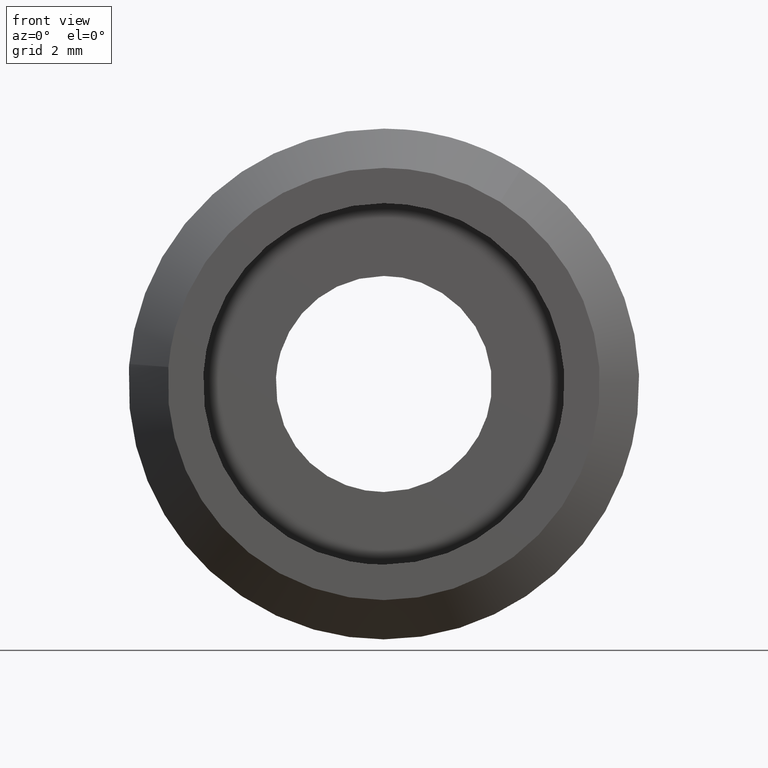
[diagram: clean part render]
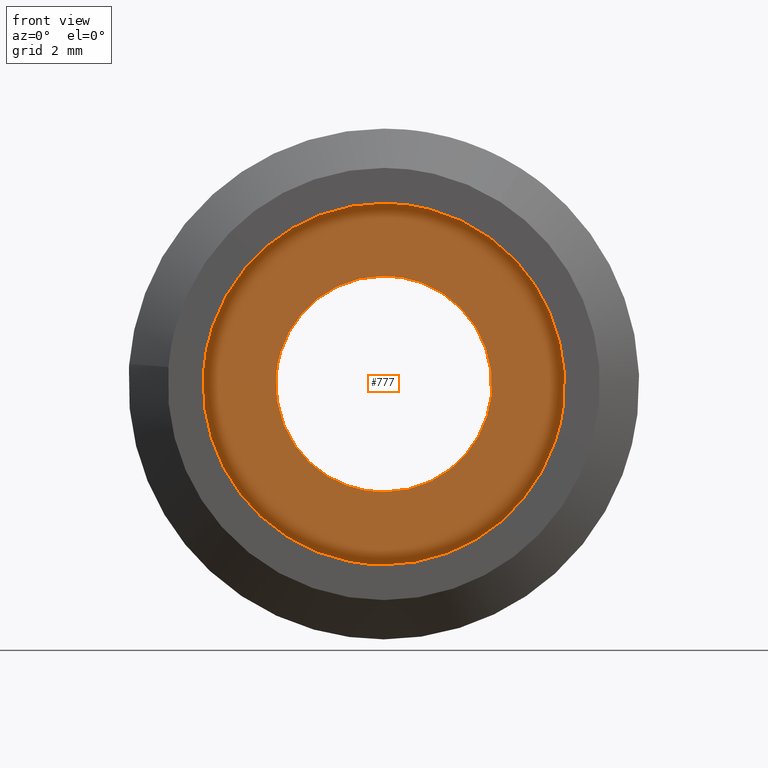
[diagram: same view with one face highlighted and labeled with its STEP entity id]
A machine part, front view. The second image highlights one B-rep face of the part: STEP entity #777.
In plain terms, the highlighted face is a freeform B-spline surface patch.
Its self-contained STEP definition (entity closure, byte-faithful):
#66=CARTESIAN_POINT('',(4.567843924772339,-3.194357E-015,-0.542956608689565));
#67=VERTEX_POINT('',#66);
#68=CARTESIAN_POINT('',(4.898425E-016,0.0,4.600000000000000));
#69=VERTEX_POINT('',#68);
#70=CARTESIAN_POINT('',(4.567843924772339,-3.194357E-015,-0.542956608689565));
#71=CARTESIAN_POINT('',(4.600000000000001,0.0,-0.272430070462030));
#72=CARTESIAN_POINT('',(4.600000000000001,0.0,0.0));
#73=CARTESIAN_POINT('',(4.600000000000001,0.0,4.600000000000000));
#74=CARTESIAN_POINT('',(4.898425E-016,0.0,4.600000000000000));
#82=(BOUNDED_CURVE()B_SPLINE_CURVE(2,(#70,#71,#72,#73,#74),.UNSPECIFIED.,.F.,.U.)B_SPLINE_CURVE_WITH_KNOTS((3,2,3),(0.229562537947122,0.250000000000000,0.500000000000000),.UNSPECIFIED.)CURVE()GEOMETRIC_REPRESENTATION_ITEM()RATIONAL_B_SPLINE_CURVE((0.956026880476258,0.976056023819819,1.0,0.707106781186547,1.0))REPRESENTATION_ITEM(''));
#83=EDGE_CURVE('',#67,#69,#82,.T.);
#124=CARTESIAN_POINT('',(-4.591420355385287,-1.392636E-014,0.280818660584011));
#125=VERTEX_POINT('',#124);
#131=CARTESIAN_POINT('',(4.898425E-016,0.0,4.600000000000000));
#132=CARTESIAN_POINT('',(-4.327252271293201,0.0,4.599999999999999));
#133=CARTESIAN_POINT('',(-4.591420355385287,-1.392636E-014,0.280818660584011));
#141=(BOUNDED_CURVE()B_SPLINE_CURVE(2,(#131,#132,#133),.UNSPECIFIED.,.F.,.U.)B_SPLINE_CURVE_WITH_KNOTS((3,3),(0.500000000000000,0.739333135910787),.UNSPECIFIED.)CURVE()GEOMETRIC_REPRESENTATION_ITEM()RATIONAL_B_SPLINE_CURVE((1.0,0.719603789817489,0.976072413878821))REPRESENTATION_ITEM(''));
#142=EDGE_CURVE('',#69,#125,#141,.T.);
#165=CARTESIAN_POINT('',(4.898425E-016,0.0,-4.600000000000000));
#166=VERTEX_POINT('',#165);
#167=CARTESIAN_POINT('',(4.898425E-016,0.0,-4.600000000000000));
#168=CARTESIAN_POINT('',(4.085604387953177,0.0,-4.599999999999999));
#169=CARTESIAN_POINT('',(4.567843924772339,-3.194357E-015,-0.542956608689565));
#177=(BOUNDED_CURVE()B_SPLINE_CURVE(2,(#167,#168,#169),.UNSPECIFIED.,.F.,.U.)B_SPLINE_CURVE_WITH_KNOTS((3,3),(0.0,0.229562537947122),.UNSPECIFIED.)CURVE()GEOMETRIC_REPRESENTATION_ITEM()RATIONAL_B_SPLINE_CURVE((1.0,0.731050757366728,0.956026880476258))REPRESENTATION_ITEM(''));
#178=EDGE_CURVE('',#166,#67,#177,.T.);
#180=CARTESIAN_POINT('',(-4.591420355385287,-1.392636E-014,0.280818660584011));
#181=CARTESIAN_POINT('',(-4.599999999999999,0.0,0.140540394056717));
#182=CARTESIAN_POINT('',(-4.599999999999999,0.0,0.0));
#183=CARTESIAN_POINT('',(-4.600000000000000,0.0,-4.600000000000000));
#184=CARTESIAN_POINT('',(4.898425E-016,0.0,-4.600000000000000));
#192=(BOUNDED_CURVE()B_SPLINE_CURVE(2,(#180,#181,#182,#183,#184),.UNSPECIFIED.,.F.,.U.)B_SPLINE_CURVE_WITH_KNOTS((3,2,3),(0.739333135910787,0.750000000000000,1.0),.UNSPECIFIED.)CURVE()GEOMETRIC_REPRESENTATION_ITEM()RATIONAL_B_SPLINE_CURVE((0.976072413878821,0.987502991369059,1.0,0.707106781186547,1.0))REPRESENTATION_ITEM(''));
#193=EDGE_CURVE('',#125,#166,#192,.T.);
#596=CARTESIAN_POINT('',(2.730776319682042,-1.124946E-014,-0.324593117398889));
#597=VERTEX_POINT('',#596);
#598=CARTESIAN_POINT('',(4.898425E-016,0.0,2.750000000000000));
#599=VERTEX_POINT('',#598);
#600=CARTESIAN_POINT('',(2.730776319682042,-1.124946E-014,-0.324593117398889));
#601=CARTESIAN_POINT('',(2.750000000000000,0.0,-0.162865809655731));
#602=CARTESIAN_POINT('',(2.750000000000000,0.0,0.0));
#603=CARTESIAN_POINT('',(2.750000000000000,0.0,2.750000000000000));
#604=CARTESIAN_POINT('',(4.898425E-016,0.0,2.750000000000000));
#612=(BOUNDED_CURVE()B_SPLINE_CURVE(2,(#600,#601,#602,#603,#604),.UNSPECIFIED.,.F.,.U.)B_SPLINE_CURVE_WITH_KNOTS((3,2,3),(0.229562537131132,0.250000000000000,0.500000000000000),.UNSPECIFIED.)CURVE()GEOMETRIC_REPRESENTATION_ITEM()RATIONAL_B_SPLINE_CURVE((0.956026878876884,0.976056022863828,1.0,0.707106781186548,1.0))REPRESENTATION_ITEM(''));
#613=EDGE_CURVE('',#597,#599,#612,.T.);
#615=CARTESIAN_POINT('',(-2.744870927625979,6.940802E-014,0.167879691026804));
#616=VERTEX_POINT('',#615);
#617=CARTESIAN_POINT('',(4.898425E-016,0.0,2.750000000000000));
#618=CARTESIAN_POINT('',(-2.586945265149691,0.0,2.750000000000001));
#619=CARTESIAN_POINT('',(-2.744870927625979,6.940802E-014,0.167879691026804));
#627=(BOUNDED_CURVE()B_SPLINE_CURVE(2,(#617,#618,#619),.UNSPECIFIED.,.F.,.U.)B_SPLINE_CURVE_WITH_KNOTS((3,3),(0.500000000000000,0.739333200656587),.UNSPECIFIED.)CURVE()GEOMETRIC_REPRESENTATION_ITEM()RATIONAL_B_SPLINE_CURVE((1.0,0.719603713963066,0.976072552641646))REPRESENTATION_ITEM(''));
#628=EDGE_CURVE('',#599,#616,#627,.T.);
#695=CARTESIAN_POINT('',(4.898425E-016,0.0,-2.750000000000000));
#696=VERTEX_POINT('',#695);
#697=CARTESIAN_POINT('',(4.898425E-016,0.0,-2.750000000000000));
#698=CARTESIAN_POINT('',(2.442480872226521,0.0,-2.749999999999999));
#699=CARTESIAN_POINT('',(2.730776319682042,-1.124946E-014,-0.324593117398889));
#707=(BOUNDED_CURVE()B_SPLINE_CURVE(2,(#697,#698,#699),.UNSPECIFIED.,.F.,.U.)B_SPLINE_CURVE_WITH_KNOTS((3,3),(0.0,0.229562537131132),.UNSPECIFIED.)CURVE()GEOMETRIC_REPRESENTATION_ITEM()RATIONAL_B_SPLINE_CURVE((1.0,0.731050758322720,0.956026878876884))REPRESENTATION_ITEM(''));
#708=EDGE_CURVE('',#696,#597,#707,.T.);
#742=CARTESIAN_POINT('',(-2.744870927625979,6.940802E-014,0.167879691026804));
#743=CARTESIAN_POINT('',(-2.750000000000000,0.0,0.084018197407122));
#744=CARTESIAN_POINT('',(-2.750000000000000,0.0,0.0));
#745=CARTESIAN_POINT('',(-2.749999999999999,0.0,-2.750000000000000));
#746=CARTESIAN_POINT('',(4.898425E-016,0.0,-2.750000000000000));
#754=(BOUNDED_CURVE()B_SPLINE_CURVE(2,(#742,#743,#744,#745,#746),.UNSPECIFIED.,.F.,.U.)B_SPLINE_CURVE_WITH_KNOTS((3,2,3),(0.739333200656587,0.750000000000000,1.0),.UNSPECIFIED.)CURVE()GEOMETRIC_REPRESENTATION_ITEM()RATIONAL_B_SPLINE_CURVE((0.976072552641646,0.987503067223482,1.0,0.707106781186548,1.0))REPRESENTATION_ITEM(''));
#755=EDGE_CURVE('',#616,#696,#754,.T.);
#760=CARTESIAN_POINT('',(-5.059428022257322,0.0,-5.059539895805596));
#761=CARTESIAN_POINT('',(-5.059428022257322,0.0,5.059540224823236));
#762=CARTESIAN_POINT('',(5.059456317774290,0.0,-5.059539895805596));
#763=CARTESIAN_POINT('',(5.059456317774290,0.0,5.059540224823236));
#764=B_SPLINE_SURFACE_WITH_KNOTS('',1,1,((#760,#762),(#761,#763)),.UNSPECIFIED.,.F.,.F.,.U.,(2,2),(2,2),(0.0,10.119080120628830),(0.0,10.118884340031610),.UNSPECIFIED.);
#765=ORIENTED_EDGE('',*,*,#178,.T.);
#766=ORIENTED_EDGE('',*,*,#83,.T.);
#767=ORIENTED_EDGE('',*,*,#142,.T.);
#768=ORIENTED_EDGE('',*,*,#193,.T.);
#769=EDGE_LOOP('',(#765,#766,#767,#768));
#770=FACE_OUTER_BOUND('',#769,.T.);
#771=ORIENTED_EDGE('',*,*,#628,.F.);
#772=ORIENTED_EDGE('',*,*,#613,.F.);
#773=ORIENTED_EDGE('',*,*,#708,.F.);
#774=ORIENTED_EDGE('',*,*,#755,.F.);
#775=EDGE_LOOP('',(#771,#772,#773,#774));
#776=FACE_BOUND('',#775,.T.);
#777=ADVANCED_FACE('',(#770,#776),#764,.F.);